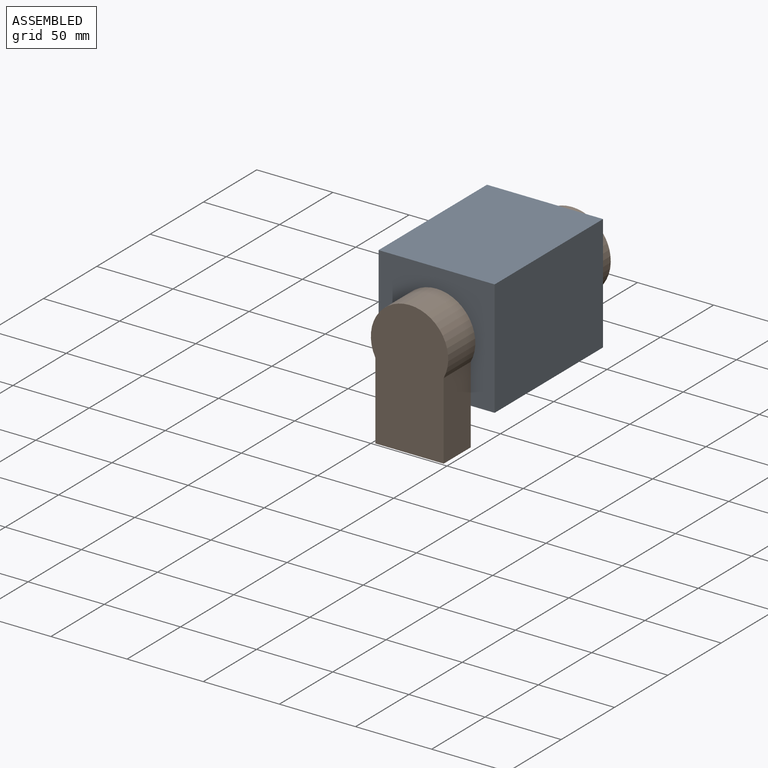
[diagram: assembled view]
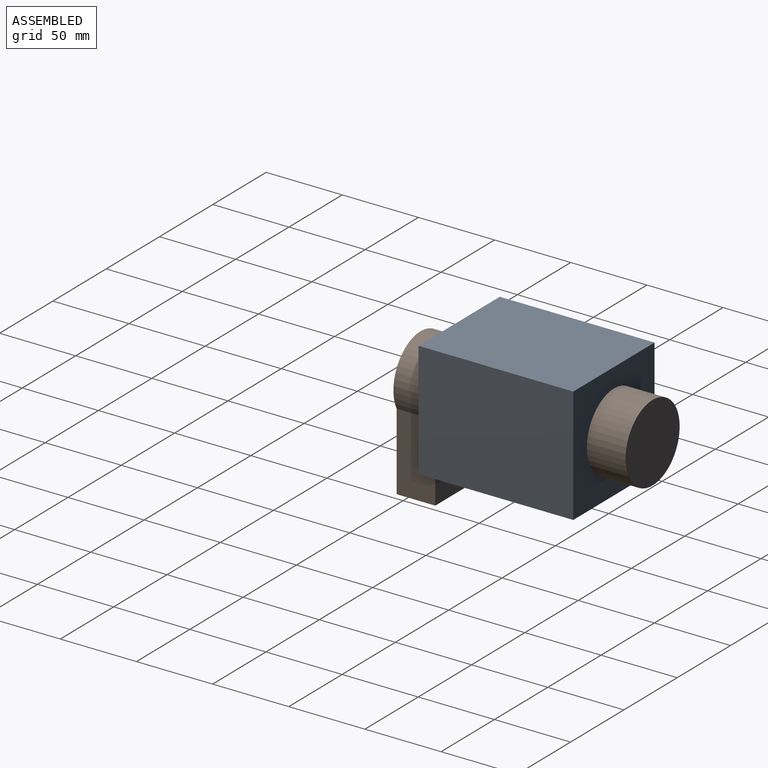
[diagram: assembled view, second angle]
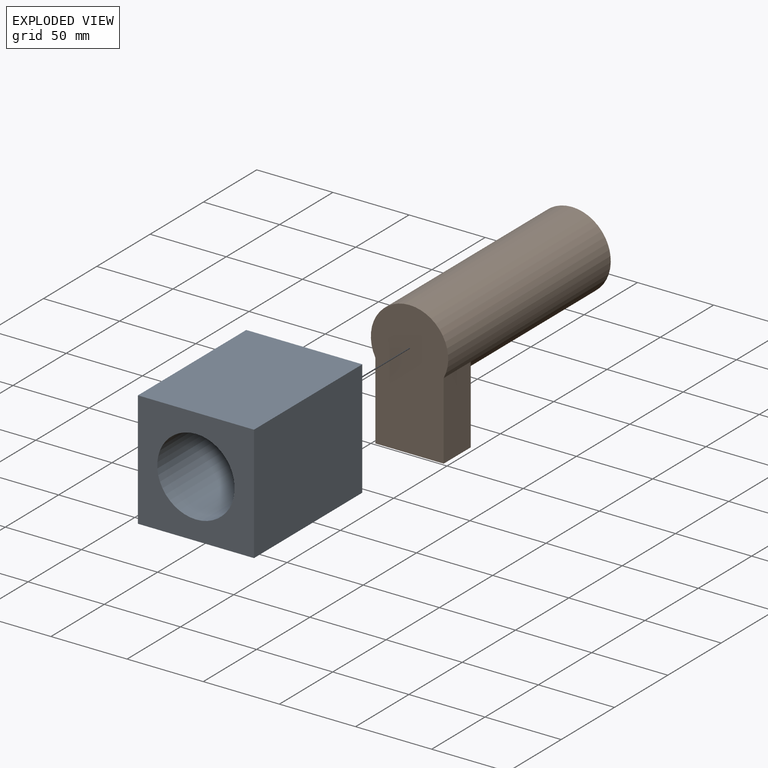
[diagram: exploded view]
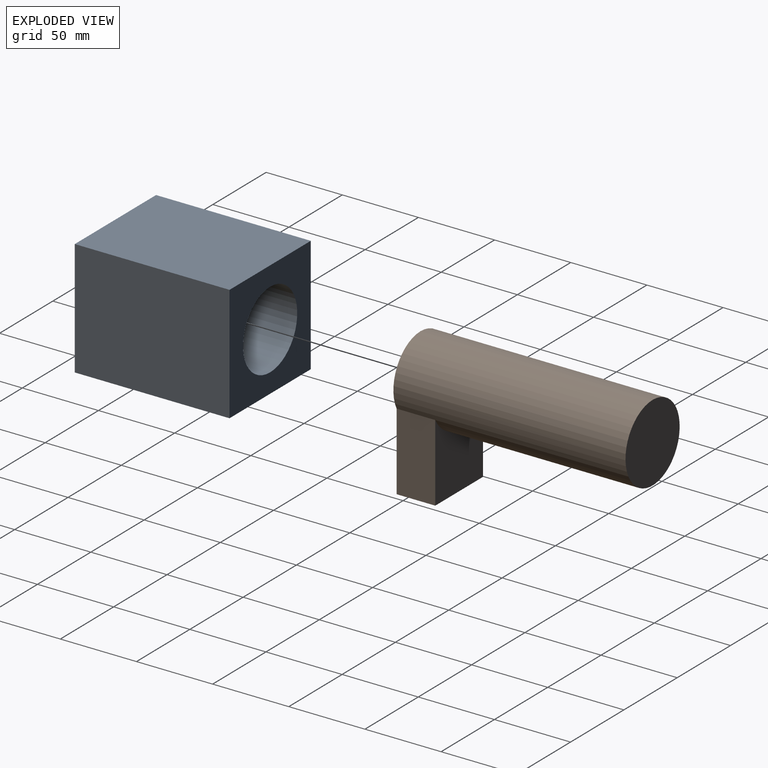
[diagram: exploded view, second angle]
ASSEMBLY  parts=2 mates=2
PART A: 7 faces, bbox 76.2x101.6x76.2 mm
  f0: plane 101.6x76.2mm, normal (0,0,1), area 7741.9mm2, adj f1,f4,f5,f6
  f1: plane 101.6x76.2mm, normal (-1,0,0), area 7741.9mm2, adj f0,f2,f5,f6
  f2: plane 101.6x76.2mm, normal (0,0,-1), area 7741.9mm2, adj f1,f4,f5,f6
  f3: cylinder r=25.4mm len=101.6mm, axis (0,1,0), area 16214.6mm2, adj f5,f6
  f4: plane 101.6x76.2mm, normal (1,0,0), area 7741.9mm2, adj f0,f2,f5,f6
  f5: plane 76.2x76.2mm, normal (0,-1,0), area 3779.6mm2, adj f0,f1,f2,f3,f4
  f6: plane 76.2x76.2mm, normal (0,1,0), area 3779.6mm2, adj f0,f1,f2,f3,f4
PART B: 7 faces, bbox 50.8x152.4x88.2 mm
  f0: plane 88.16x50.8mm, normal (0,1,0), area 3874.4mm2, adj f1,f3,f5,f6
  f1: cylinder r=25.4mm len=152.4mm, axis (0,1,0), area 22927.7mm2, adj f0,f2,f3,f4,f5
  f2: plane 50.8x50.8mm, normal (0,-1,0), area 2026.8mm2, adj f1
  f3: plane 50.8x25.4mm, normal (-1,0,0), area 1290.3mm2, adj f0,f1,f4,f6
  f4: plane 50.8x44.82mm, normal (0,-1,0), area 1847.5mm2, adj f1,f3,f5,f6
  f5: plane 50.8x25.4mm, normal (1,0,0), area 1290.3mm2, adj f0,f1,f4,f6
  f6: plane 44.82x25.4mm, normal (0,0,1), area 1138.3mm2, adj f0,f3,f4,f5
PLACE A rot(axis=(0,0.55,0.83),0deg) t=(-131.51,23.12,-34.85)mm
PLACE B rot(axis=(1,0,0),180deg) t=(-40.83,-103.88,-13.29)mm
MATE revolute B.f1 <-> A.f3  axis (0,-1,0) through (-71.88,-27.68,-18.88)mm
MATE fastened A.f3 <-> B.f1  axis (0,1,0) through (-71.88,-27.68,-18.88)mm
